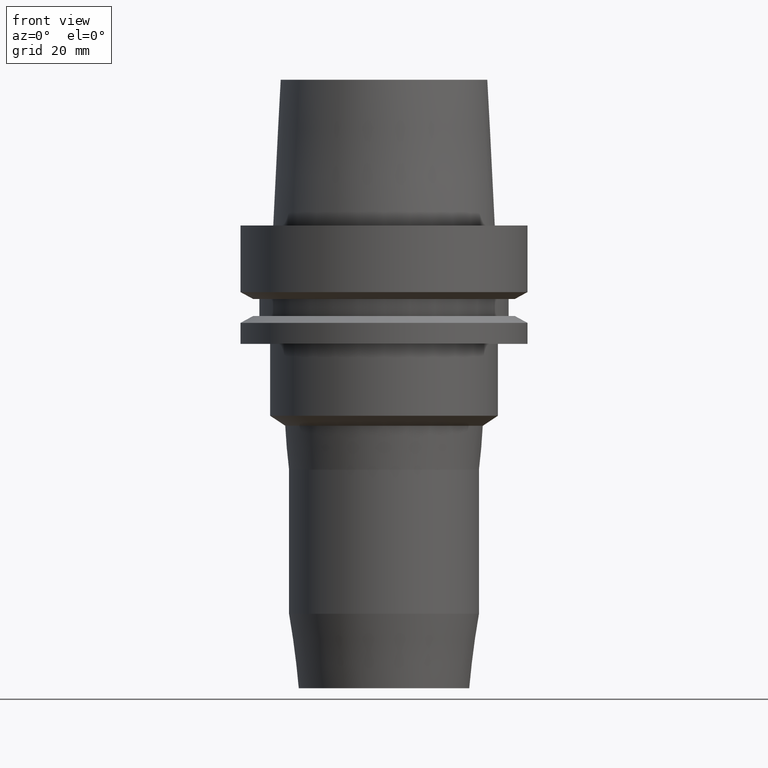
[diagram: clean part render]
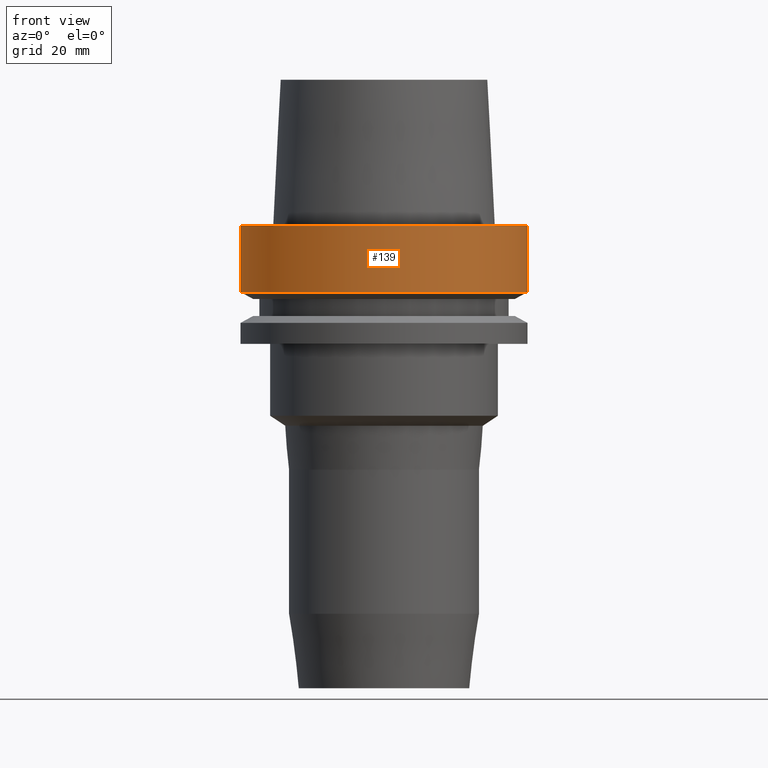
[diagram: same view with one face highlighted and labeled with its STEP entity id]
A machine part, front view. The second image highlights one B-rep face of the part: STEP entity #139.
In plain terms, the highlighted cylindrical surface (bore or boss wall) has radius 31.5 mm, axis along (0, 0, -1).
Its self-contained STEP definition (entity closure, byte-faithful):
#74=EDGE_CURVE('Unnamed[1]',#184,#184,#185,.T.);
#101=EDGE_CURVE('Unnamed[1]',#225,#225,#226,.T.);
#139=ADVANCED_FACE('Unnamed[1]',(#285,#286),#287,.T.);
#184=VERTEX_POINT('',#330);
#185=CIRCLE('',#331,31.5000000000001);
#225=VERTEX_POINT('',#382);
#226=CIRCLE('',#383,31.5);
#285=FACE_BOUND('',#457,.T.);
#286=FACE_BOUND('',#458,.T.);
#287=CYLINDRICAL_SURFACE('',#459,31.5);
#330=CARTESIAN_POINT('',(-3.88267476788467E-031,31.5000000000001,3.85763741731417E-015));
#331=AXIS2_PLACEMENT_3D('',#492,#493,#494);
#382=CARTESIAN_POINT('',(8.95369947681261E-016,31.5,-14.6225009252407));
#383=AXIS2_PLACEMENT_3D('',#538,#539,#540);
#457=EDGE_LOOP('',(#605));
#458=EDGE_LOOP('',(#606));
#459=AXIS2_PLACEMENT_3D('',#607,#608,#609);
#492=CARTESIAN_POINT('',(0.0,0.0,0.0));
#493=DIRECTION('',(6.12323399573677E-017,1.22464679914735E-016,-1.0));
#494=DIRECTION('',(-1.23259516440783E-032,1.0,1.22464679914735E-016));
#538=CARTESIAN_POINT('',(8.95369947681262E-016,1.79073989536252E-015,-14.6225009252407));
#539=DIRECTION('',(6.12323399573677E-017,1.22464679914735E-016,-1.0));
#540=DIRECTION('',(-1.23259516440783E-032,1.0,1.22464679914735E-016));
#605=ORIENTED_EDGE('',*,*,#101,.F.);
#606=ORIENTED_EDGE('',*,*,#74,.T.);
#607=CARTESIAN_POINT('',(4.47684973840631E-016,8.95369947681262E-016,-7.31125046262035));
#608=DIRECTION('',(6.12323399573677E-017,1.22464679914735E-016,-1.0));
#609=DIRECTION('',(-1.23259516440783E-032,1.0,1.22464679914735E-016));